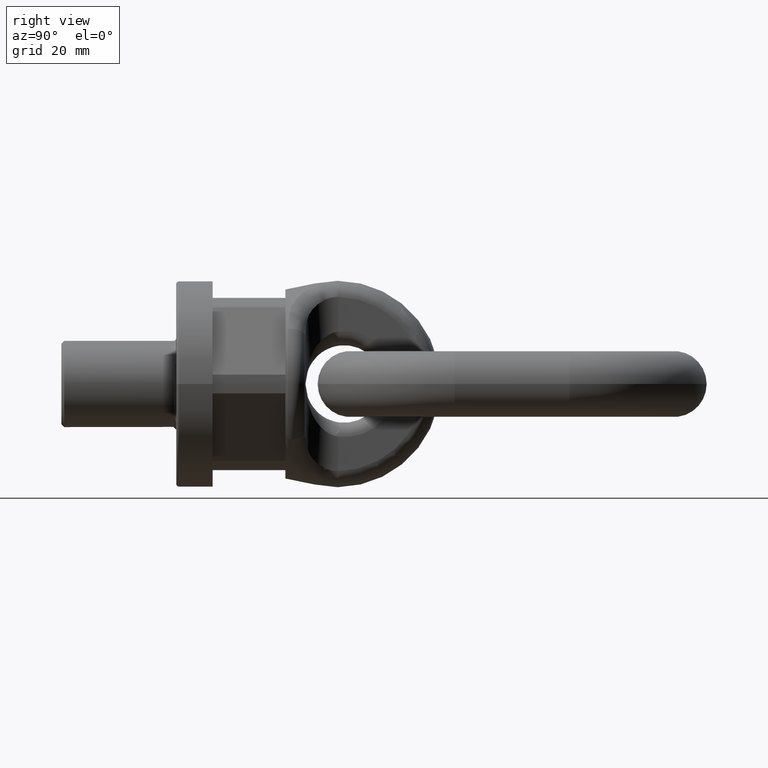
[diagram: clean part render]
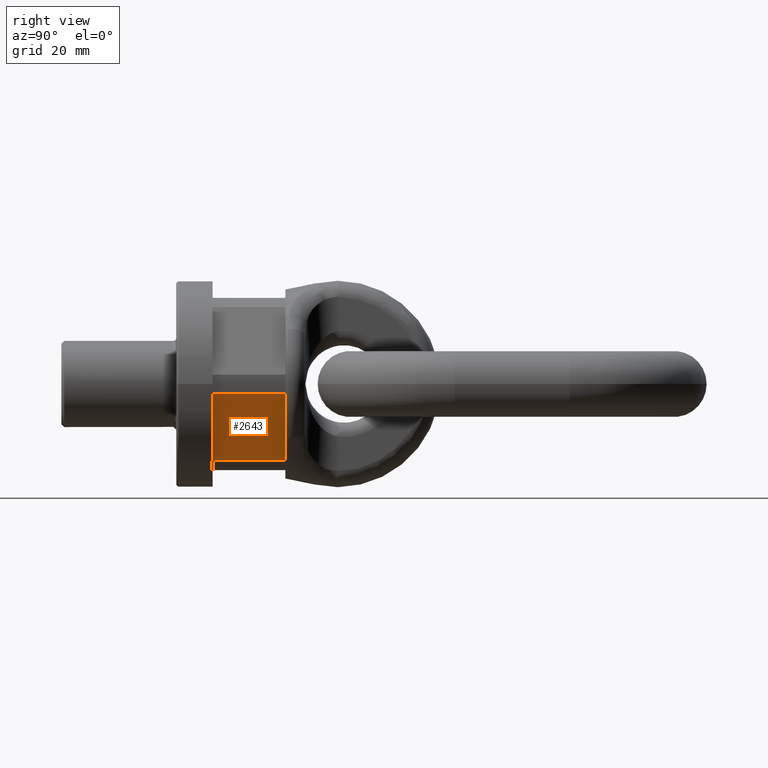
[diagram: same view with one face highlighted and labeled with its STEP entity id]
A machine part, right view. The second image highlights one B-rep face of the part: STEP entity #2643.
In plain terms, the highlighted planar face has unit normal (0.866, 0, -0.5).
Its self-contained STEP definition (entity closure, byte-faithful):
#1801=FACE_OUTER_BOUND('',#3066,.T.);
#2038=LINE('',#6590,#2294);
#2048=LINE('',#6615,#2304);
#2049=LINE('',#6617,#2305);
#2050=LINE('',#6619,#2306);
#2294=VECTOR('',#5826,1.);
#2304=VECTOR('',#5850,1.);
#2305=VECTOR('',#5851,1.);
#2306=VECTOR('',#5852,1.);
#2643=ADVANCED_FACE('',(#1801),#2885,.T.);
#2885=PLANE('',#5612);
#3066=EDGE_LOOP('',(#3372,#3373,#3374,#3375));
#3372=ORIENTED_EDGE('',*,*,#4958,.F.);
#3373=ORIENTED_EDGE('',*,*,#4946,.T.);
#3374=ORIENTED_EDGE('',*,*,#4959,.F.);
#3375=ORIENTED_EDGE('',*,*,#4960,.T.);
#4548=VERTEX_POINT('',#6589);
#4549=VERTEX_POINT('',#6591);
#4557=VERTEX_POINT('',#6616);
#4558=VERTEX_POINT('',#6618);
#4946=EDGE_CURVE('',#4549,#4548,#2038,.T.);
#4958=EDGE_CURVE('',#4549,#4557,#2048,.T.);
#4959=EDGE_CURVE('',#4558,#4548,#2049,.T.);
#4960=EDGE_CURVE('',#4558,#4557,#2050,.T.);
#5612=AXIS2_PLACEMENT_3D('',#6620,#5853,#5854);
#5826=DIRECTION('',(-0.499999999999999,-2.21564388003632E-17,-0.866025403784439));
#5850=DIRECTION('',(-2.4492935982947E-17,1.,0.));
#5851=DIRECTION('',(2.4492935982947E-17,-1.,0.));
#5852=DIRECTION('',(0.499999999999999,0.,0.866025403784439));
#5853=DIRECTION('',(0.866025403784439,0.,-0.499999999999999));
#5854=DIRECTION('',(-0.499999999999999,0.,-0.866025403784439));
#6589=CARTESIAN_POINT('',(19.2168874842988,12.6666666666667,-26.71537451386));
#6590=CARTESIAN_POINT('',(34.9807621135331,12.6666666666667,0.588457268119927));
#6591=CARTESIAN_POINT('',(32.7446367427675,12.6666666666667,-3.28462548613991));
#6615=CARTESIAN_POINT('',(32.7446367427675,1.65667148290517E-16,-3.28462548613991));
#6616=CARTESIAN_POINT('',(32.7446367427675,38.,-3.2846254861399));
#6617=CARTESIAN_POINT('',(19.2168874842988,-1.65667148290517E-16,-26.71537451386));
#6618=CARTESIAN_POINT('',(19.2168874842988,38.,-26.71537451386));
#6619=CARTESIAN_POINT('',(17.3205080756888,38.,-30.));
#6620=CARTESIAN_POINT('',(17.3205080756888,38.,-30.));